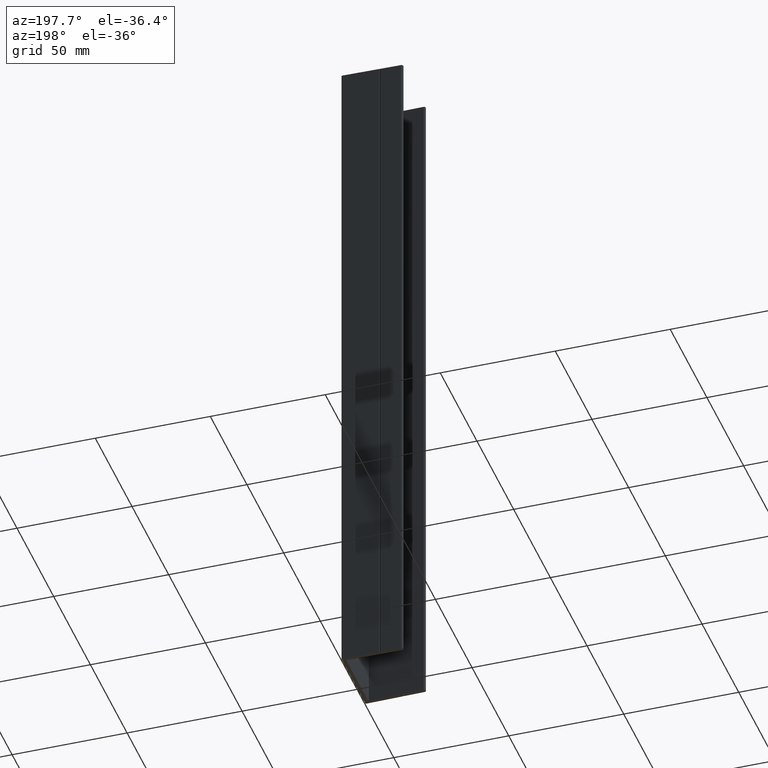
[diagram: clean part render]
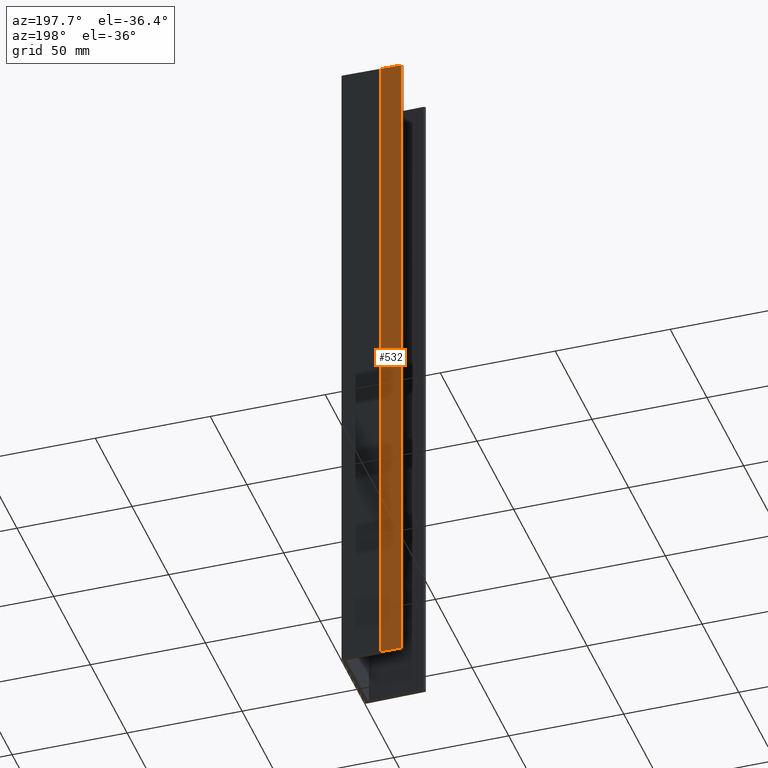
[diagram: same view with one face highlighted and labeled with its STEP entity id]
A machine part, auxiliary view. The second image highlights one B-rep face of the part: STEP entity #532.
In plain terms, the highlighted planar face has unit normal (0.016, -0.9999, 0).
Its self-contained STEP definition (entity closure, byte-faithful):
#79 = CARTESIAN_POINT ( 'NONE',  ( 1.092001023803434100, 16.51788161638097600, 150.0000000000000000 ) ) ;
#81 = DIRECTION ( 'NONE',  ( -0.0000000000000000000, -0.0000000000000000000, 1.000000000000000000 ) ) ;
#84 = VECTOR ( 'NONE', #644, 1000.000000000000100 ) ;
#88 = VERTEX_POINT ( 'NONE', #691 ) ;
#93 = DIRECTION ( 'NONE',  ( 0.01599795239313701200, -0.9998720245707583000, 0.0000000000000000000 ) ) ;
#132 = EDGE_LOOP ( 'NONE', ( #278, #723, #689, #213 ) ) ;
#213 = ORIENTED_EDGE ( 'NONE', *, *, #815, .F. ) ;
#233 = VERTEX_POINT ( 'NONE', #237 ) ;
#237 = CARTESIAN_POINT ( 'NONE',  ( -24.22570238034339200, 16.11279836191450300, -150.0000000000000000 ) ) ;
#244 = LINE ( 'NONE', #380, #385 ) ;
#278 = ORIENTED_EDGE ( 'NONE', *, *, #861, .F. ) ;
#380 = CARTESIAN_POINT ( 'NONE',  ( -15.28087924239068100, 16.25591553212179000, -150.0009999999999800 ) ) ;
#385 = VECTOR ( 'NONE', #81, 1000.000000000000000 ) ;
#415 = LINE ( 'NONE', #79, #84 ) ;
#421 = CARTESIAN_POINT ( 'NONE',  ( -24.22570238034339200, 16.11279836191450300, 150.0000000000000000 ) ) ;
#479 = FACE_OUTER_BOUND ( 'NONE', #132, .T. ) ;
#481 = VERTEX_POINT ( 'NONE', #636 ) ;
#532 = ADVANCED_FACE ( 'NONE', ( #479 ), #728, .F. ) ;
#547 = VECTOR ( 'NONE', #600, 1000.000000000000000 ) ;
#555 = VECTOR ( 'NONE', #567, 1000.000000000000100 ) ;
#560 = CARTESIAN_POINT ( 'NONE',  ( 1.092001023803434100, 16.51788161638097600, 150.0000000000000000 ) ) ;
#563 = LINE ( 'NONE', #421, #547 ) ;
#567 = DIRECTION ( 'NONE',  ( -0.9998720245707581900, -0.01599795239313700800, 0.0000000000000000000 ) ) ;
#579 = DIRECTION ( 'NONE',  ( 0.9998720245707583000, 0.01599795239313701200, 0.0000000000000000000 ) ) ;
#600 = DIRECTION ( 'NONE',  ( -0.0000000000000000000, -0.0000000000000000000, -1.000000000000000000 ) ) ;
#636 = CARTESIAN_POINT ( 'NONE',  ( -15.28087924239068100, 16.25591553212179000, 150.0000000000000000 ) ) ;
#644 = DIRECTION ( 'NONE',  ( -0.9998720245707581900, -0.01599795239313700800, 0.0000000000000000000 ) ) ;
#648 = CARTESIAN_POINT ( 'NONE',  ( 1.092001023803434100, 16.51788161638097600, -150.0000000000000000 ) ) ;
#661 = VERTEX_POINT ( 'NONE', #748 ) ;
#689 = ORIENTED_EDGE ( 'NONE', *, *, #866, .T. ) ;
#691 = CARTESIAN_POINT ( 'NONE',  ( -24.22570238034339200, 16.11279836191450300, 150.0000000000000000 ) ) ;
#707 = AXIS2_PLACEMENT_3D ( 'NONE', #560, #93, #579 ) ;
#723 = ORIENTED_EDGE ( 'NONE', *, *, #865, .F. ) ;
#728 = PLANE ( 'NONE',  #707 ) ;
#748 = CARTESIAN_POINT ( 'NONE',  ( -15.28087924239068400, 16.25591553212179000, -150.0000000000000000 ) ) ;
#781 = LINE ( 'NONE', #648, #555 ) ;
#815 = EDGE_CURVE ( 'NONE', #88, #233, #563, .T. ) ;
#861 = EDGE_CURVE ( 'NONE', #481, #88, #415, .T. ) ;
#865 = EDGE_CURVE ( 'NONE', #661, #481, #244, .T. ) ;
#866 = EDGE_CURVE ( 'NONE', #661, #233, #781, .T. ) ;